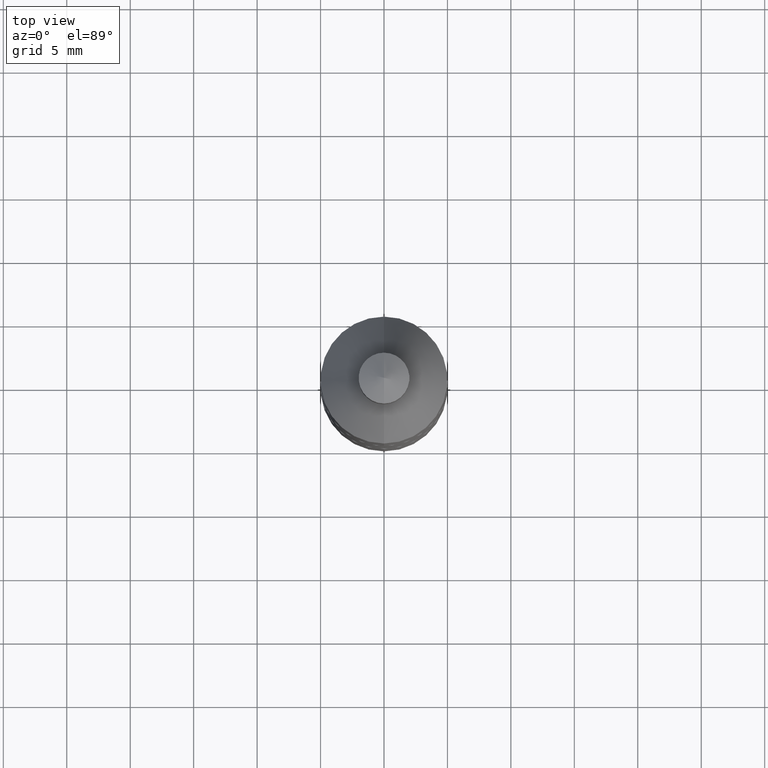
[diagram: clean part render]
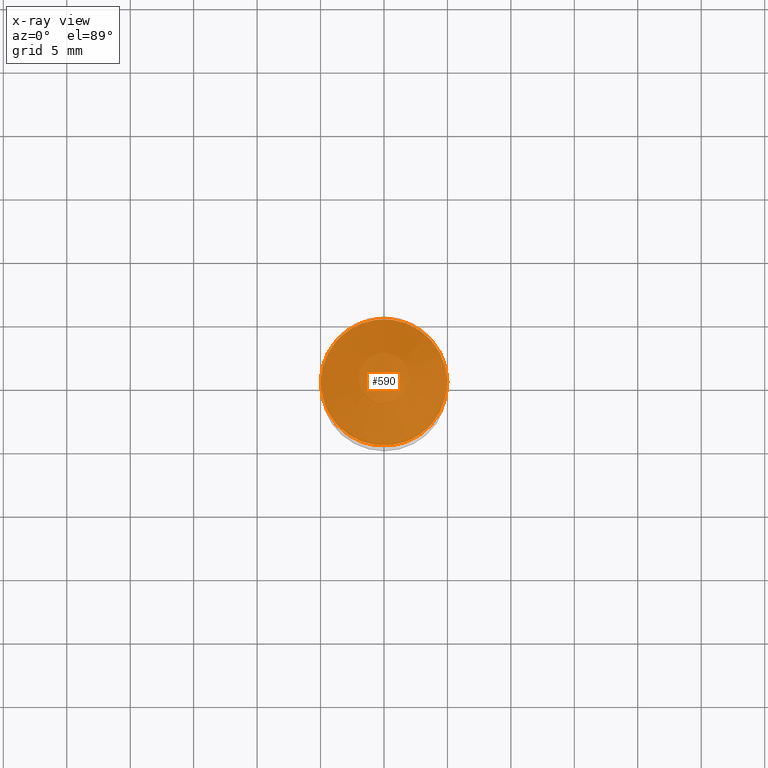
[diagram: x-ray — body ghosted, one internal face saturated and labeled with its STEP entity id]
A machine part, top view, then the same camera in x-ray: the body is ghosted and one INTERNAL B-rep face — a face not visible from any outside direction — is saturated and labeled: STEP entity #590.
In plain terms, the highlighted planar face has unit normal (-0, 0, 1).
Its self-contained STEP definition (entity closure, byte-faithful):
#3 = ORIENTED_EDGE ( 'NONE', *, *, #476, .T. ) ;
#36 = DIRECTION ( 'NONE',  ( -2.445468806185136597E-29, 3.491481338843145583E-15, 1.000000000000000000 ) ) ;
#43 = DIRECTION ( 'NONE',  ( 1.000000000000000000, -6.982962677686266711E-15, 0.000000000000000000 ) ) ;
#44 = ORIENTED_EDGE ( 'NONE', *, *, #89, .T. ) ;
#89 = EDGE_CURVE ( 'NONE', #644, #435, #124, .T. ) ;
#107 = DIRECTION ( 'NONE',  ( -2.438088387897960049E-29, 3.491481338843145188E-15, 1.000000000000000000 ) ) ;
#124 = CIRCLE ( 'NONE', #315, 0.1963500000000000800 ) ;
#195 = EDGE_LOOP ( 'NONE', ( #44, #3 ) ) ;
#201 = CARTESIAN_POINT ( 'NONE',  ( -6.260400143833955248E-30, 8.938192227438461148E-16, 0.2560000000000002274 ) ) ;
#212 = CARTESIAN_POINT ( 'NONE',  ( -5.949504008062207368E-30, 9.383413188972745506E-16, 0.2560000000000002829 ) ) ;
#282 = PLANE ( 'NONE',  #657 ) ;
#315 = AXIS2_PLACEMENT_3D ( 'NONE', #408, #36, #625 ) ;
#355 = CIRCLE ( 'NONE', #504, 0.1963500000000000800 ) ;
#376 = DIRECTION ( 'NONE',  ( -1.000000000000000000, 6.982962677686265922E-15, -4.876176775795935793E-29 ) ) ;
#384 = CARTESIAN_POINT ( 'NONE',  ( 0.1963500000000000800, -4.772854990198528808E-16, 0.2560000000000002274 ) ) ;
#408 = CARTESIAN_POINT ( 'NONE',  ( -6.260400143833955248E-30, 8.938192227438461148E-16, 0.2560000000000002274 ) ) ;
#424 = FACE_OUTER_BOUND ( 'NONE', #195, .T. ) ;
#435 = VERTEX_POINT ( 'NONE', #533 ) ;
#476 = EDGE_CURVE ( 'NONE', #435, #644, #355, .T. ) ;
#504 = AXIS2_PLACEMENT_3D ( 'NONE', #201, #518, #43 ) ;
#518 = DIRECTION ( 'NONE',  ( -2.445468806185136597E-29, 3.491481338843145583E-15, 1.000000000000000000 ) ) ;
#533 = CARTESIAN_POINT ( 'NONE',  ( -0.1963500000000000800, 2.241720258771019023E-15, 0.2560000000000002274 ) ) ;
#590 = ADVANCED_FACE ( 'NONE', ( #424 ), #282, .T. ) ;
#625 = DIRECTION ( 'NONE',  ( 1.000000000000000000, -6.982962677686266711E-15, 0.000000000000000000 ) ) ;
#644 = VERTEX_POINT ( 'NONE', #384 ) ;
#657 = AXIS2_PLACEMENT_3D ( 'NONE', #212, #107, #376 ) ;